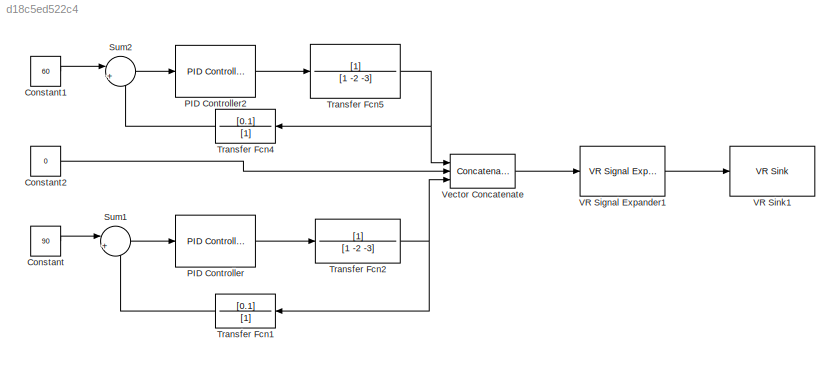
MODEL slx_d18c5ed522c4
KIND model
CONFIG AbsTol = auto
CONFIG EnableMultiTasking = off
CONFIG FixedStep = auto
CONFIG MaxStep = auto
CONFIG MinStep = auto
CONFIG RelTol = 1e-3
CONFIG SampleTimeConstraint = Unconstrained
CONFIG Solver = VariableStepAuto
CONFIG SolverName = VariableStepAuto
CONFIG StartTime = 0.0
CONFIG StopTime = 10.0
BLOCK [Constant] Constant
  Value = 90
BLOCK [Constant] Constant1
  Value = 60
BLOCK [Constant] Constant2
  Value = 0
BLOCK [Reference] PID Controller  REF=simulink/Continuous/PID Controller
  Ports = [1, 1]
  SourceBlock = simulink/Continuous/PID Controller
  SourceProductBaseCode = SL
  SourceProductName = Simulink
  SourceType = PID 1dof
BLOCK [Reference] PID Controller2  REF=simulink/Continuous/PID Controller
  Ports = [1, 1]
  SourceBlock = simulink/Continuous/PID Controller
  SourceProductBaseCode = SL
  SourceProductName = Simulink
  SourceType = PID 1dof
BLOCK [Sum] Sum1
  IconShape = round
  InputSameDT = off
  Inputs = |+-
  OutDataTypeStr = Inherit: Inherit via internal rule
  OutMax = 2
  OutMin = 2
  Ports = [2, 1]
  SaturateOnIntegerOverflow = off
BLOCK [Sum] Sum2
  IconShape = round
  InputSameDT = off
  Inputs = |+-
  OutDataTypeStr = Inherit: Inherit via internal rule
  OutMax = 2
  OutMin = 2
  Ports = [2, 1]
  SaturateOnIntegerOverflow = off
BLOCK [TransferFcn] Transfer Fcn1
  Denominator = [1]
  Numerator = [0.1]
BLOCK [TransferFcn] Transfer Fcn2
  Denominator = [1 -2 -3]
BLOCK [TransferFcn] Transfer Fcn4
  Denominator = [1]
  Numerator = [0.1]
BLOCK [TransferFcn] Transfer Fcn5
  Denominator = [1 -2 -3]
BLOCK [Reference] VR Signal Expander1  REF=vrlib/VR Signal Expander
  Ports = [1, 1]
  SourceBlock = vrlib/VR Signal Expander
  SourceProductBaseCode = VR
  SourceProductName = Simulink 3D Animation
  SourceType = VR Signal Expander
BLOCK [Reference] VR Sink1  REF=vrlib/VR Sink
  InstantiateOnLoad = on
  Ports = [1]
  SourceBlock = vrlib/VR Sink
  SourceProductBaseCode = VR
  SourceProductName = Simulink 3D Animation
  SourceType = Virtual Reality Sink
BLOCK [Concatenate] Vector Concatenate
  NumInputs = 3
  Ports = [3, 1]
LINE Constant1:1 -> Sum2:1
LINE Constant2:1 -> Vector Concatenate:2
LINE Constant:1 -> Sum1:1
LINE PID Controller2:1 -> Transfer Fcn5:1
LINE PID Controller:1 -> Transfer Fcn2:1
LINE Sum1:1 -> PID Controller:1
LINE Sum2:1 -> PID Controller2:1
LINE Transfer Fcn1:1 -> Sum1:2
NET Transfer Fcn2:1 -> Transfer Fcn1:1, Vector Concatenate:3
LINE Transfer Fcn4:1 -> Sum2:2
NET Transfer Fcn5:1 -> Transfer Fcn4:1, Vector Concatenate:1
LINE VR Signal Expander1:1 -> VR Sink1:1
LINE Vector Concatenate:1 -> VR Signal Expander1:1
note: NET lines group one-source signal fan-out (src -> all destinations, sorted); 1:1 wires keep LINE
